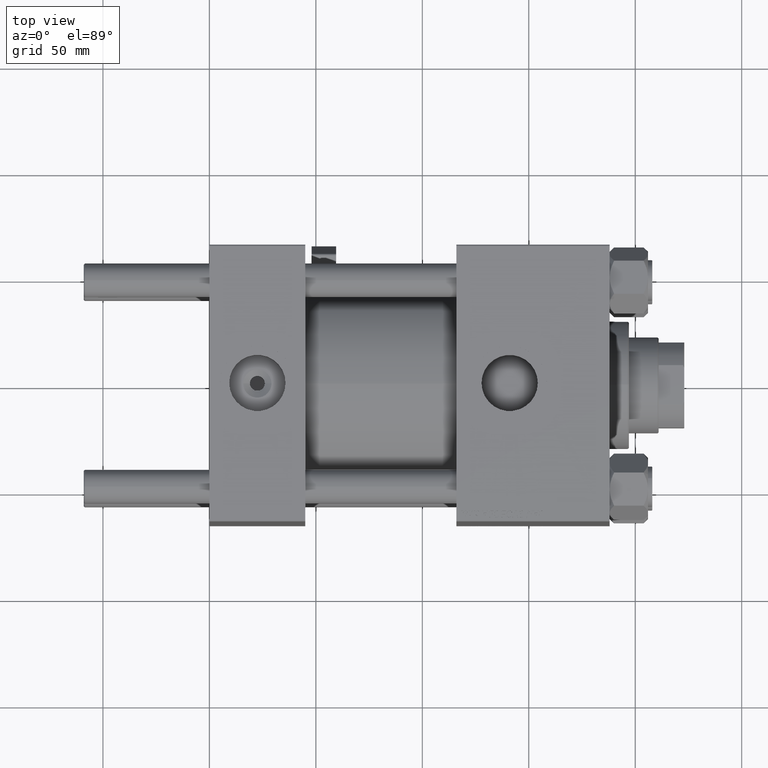
[diagram: clean part render]
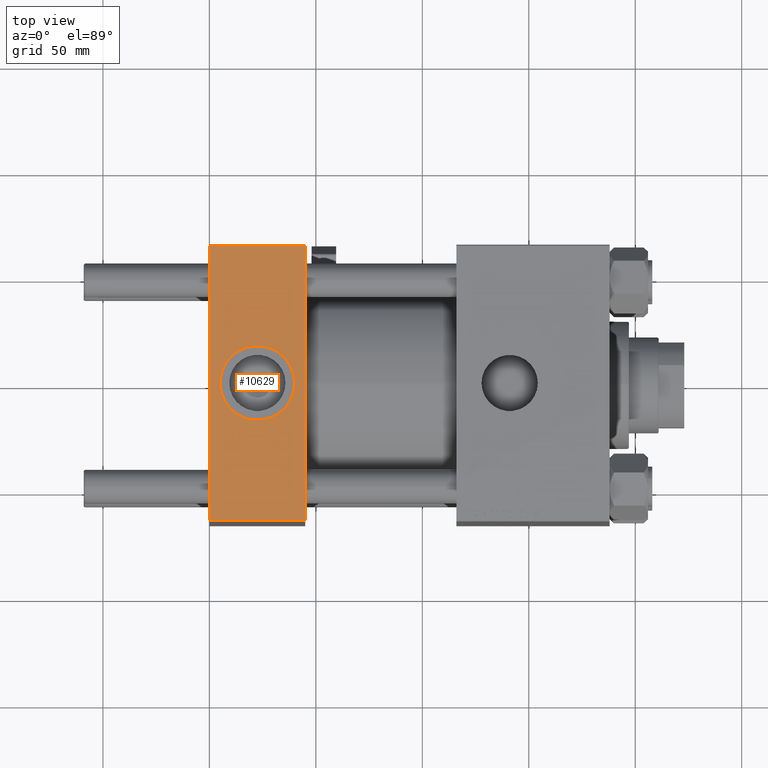
[diagram: same view with one face highlighted and labeled with its STEP entity id]
A machine part, top view. The second image highlights one B-rep face of the part: STEP entity #10629.
In plain terms, the highlighted planar face has unit normal (0, 0, -1).
Its self-contained STEP definition (entity closure, byte-faithful):
#1246 = CARTESIAN_POINT ( 'NONE',  ( 4.999999999999997335, -6.530485481376167224E-15, 65.00000000000000000 ) ) ;
#1419 = LINE ( 'NONE', #38062, #36185 ) ;
#2300 = LINE ( 'NONE', #3466, #48729 ) ;
#2679 = CARTESIAN_POINT ( 'NONE',  ( 22.50000000000000000, -8.673617379884035472E-15, 65.00000000000000000 ) ) ;
#3466 = CARTESIAN_POINT ( 'NONE',  ( 45.00000000000000000, 65.00000000000000000, 65.00000000000001421 ) ) ;
#3477 = DIRECTION ( 'NONE',  ( 1.000000000000000000, 0.000000000000000000, 0.000000000000000000 ) ) ;
#4972 = CARTESIAN_POINT ( 'NONE',  ( 45.00000000000000000, -64.49999999999997158, 65.00000000000000000 ) ) ;
#5085 = VERTEX_POINT ( 'NONE', #4972 ) ;
#8854 = CARTESIAN_POINT ( 'NONE',  ( 0.000000000000000000, 64.49999999999997158, 65.00000000000001421 ) ) ;
#10350 = VERTEX_POINT ( 'NONE', #37709 ) ;
#10629 = ADVANCED_FACE ( 'NONE', ( #37840, #13695 ), #18463, .F. ) ;
#10681 = CARTESIAN_POINT ( 'NONE',  ( 45.00000000000000000, 64.49999999999997158, 65.00000000000001421 ) ) ;
#10925 = EDGE_LOOP ( 'NONE', ( #23454, #49604, #26731, #16278 ) ) ;
#13140 = DIRECTION ( 'NONE',  ( 0.000000000000000000, -1.000000000000000000, -1.067522139062650425E-16 ) ) ;
#13695 = FACE_OUTER_BOUND ( 'NONE', #10925, .T. ) ;
#14216 = CARTESIAN_POINT ( 'NONE',  ( 45.00000000000000000, 65.00000000000000000, 65.00000000000001421 ) ) ;
#15150 = CARTESIAN_POINT ( 'NONE',  ( 45.00000000000000000, -64.49999999999997158, 65.00000000000000000 ) ) ;
#15832 = VECTOR ( 'NONE', #39816, 1000.000000000000000 ) ;
#16278 = ORIENTED_EDGE ( 'NONE', *, *, #31172, .T. ) ;
#18463 = PLANE ( 'NONE',  #48219 ) ;
#19676 = DIRECTION ( 'NONE',  ( 0.000000000000000000, -1.000000000000000000, -1.067522139062650425E-16 ) ) ;
#20539 = VERTEX_POINT ( 'NONE', #38593 ) ;
#23454 = ORIENTED_EDGE ( 'NONE', *, *, #48889, .T. ) ;
#23503 = DIRECTION ( 'NONE',  ( 1.000000000000000000, 0.000000000000000000, 0.000000000000000000 ) ) ;
#24107 = EDGE_LOOP ( 'NONE', ( #35678, #26994 ) ) ;
#24158 = AXIS2_PLACEMENT_3D ( 'NONE', #2679, #51544, #3477 ) ;
#26731 = ORIENTED_EDGE ( 'NONE', *, *, #43121, .F. ) ;
#26994 = ORIENTED_EDGE ( 'NONE', *, *, #48700, .F. ) ;
#27798 = VERTEX_POINT ( 'NONE', #38742 ) ;
#30112 = CIRCLE ( 'NONE', #24158, 17.50000000000000000 ) ;
#31075 = AXIS2_PLACEMENT_3D ( 'NONE', #31728, #35962, #23503 ) ;
#31172 = EDGE_CURVE ( 'NONE', #31515, #27798, #37254, .T. ) ;
#31515 = VERTEX_POINT ( 'NONE', #10681 ) ;
#31728 = CARTESIAN_POINT ( 'NONE',  ( 22.50000000000000000, -8.673617379884035472E-15, 65.00000000000000000 ) ) ;
#32567 = EDGE_CURVE ( 'NONE', #20539, #5085, #47255, .T. ) ;
#34482 = CIRCLE ( 'NONE', #31075, 17.50000000000000000 ) ;
#34882 = DIRECTION ( 'NONE',  ( 0.000000000000000000, 1.000000000000000000, 1.067522139062650548E-16 ) ) ;
#35678 = ORIENTED_EDGE ( 'NONE', *, *, #44332, .F. ) ;
#35962 = DIRECTION ( 'NONE',  ( 0.000000000000000000, 0.000000000000000000, 1.000000000000000000 ) ) ;
#36185 = VECTOR ( 'NONE', #13140, 1000.000000000000000 ) ;
#37254 = LINE ( 'NONE', #8854, #49538 ) ;
#37709 = CARTESIAN_POINT ( 'NONE',  ( 40.00000000000000000, -8.673617379884035472E-15, 65.00000000000000000 ) ) ;
#37840 = FACE_BOUND ( 'NONE', #24107, .T. ) ;
#38062 = CARTESIAN_POINT ( 'NONE',  ( 0.000000000000000000, 65.00000000000000000, 65.00000000000001421 ) ) ;
#38106 = DIRECTION ( 'NONE',  ( 0.000000000000000000, 1.067522139062650548E-16, -1.000000000000000000 ) ) ;
#38593 = CARTESIAN_POINT ( 'NONE',  ( 0.000000000000000000, -64.49999999999997158, 65.00000000000000000 ) ) ;
#38742 = CARTESIAN_POINT ( 'NONE',  ( 0.000000000000000000, 64.49999999999997158, 65.00000000000001421 ) ) ;
#38877 = VERTEX_POINT ( 'NONE', #1246 ) ;
#39816 = DIRECTION ( 'NONE',  ( 1.000000000000000000, 0.000000000000000000, 0.000000000000000000 ) ) ;
#41503 = DIRECTION ( 'NONE',  ( -1.000000000000000000, 0.000000000000000000, 0.000000000000000000 ) ) ;
#43121 = EDGE_CURVE ( 'NONE', #31515, #5085, #2300, .T. ) ;
#44332 = EDGE_CURVE ( 'NONE', #10350, #38877, #30112, .T. ) ;
#47255 = LINE ( 'NONE', #15150, #15832 ) ;
#48219 = AXIS2_PLACEMENT_3D ( 'NONE', #14216, #38106, #34882 ) ;
#48700 = EDGE_CURVE ( 'NONE', #38877, #10350, #34482, .T. ) ;
#48729 = VECTOR ( 'NONE', #19676, 1000.000000000000000 ) ;
#48889 = EDGE_CURVE ( 'NONE', #27798, #20539, #1419, .T. ) ;
#49538 = VECTOR ( 'NONE', #41503, 1000.000000000000000 ) ;
#49604 = ORIENTED_EDGE ( 'NONE', *, *, #32567, .T. ) ;
#51544 = DIRECTION ( 'NONE',  ( 0.000000000000000000, 0.000000000000000000, 1.000000000000000000 ) ) ;